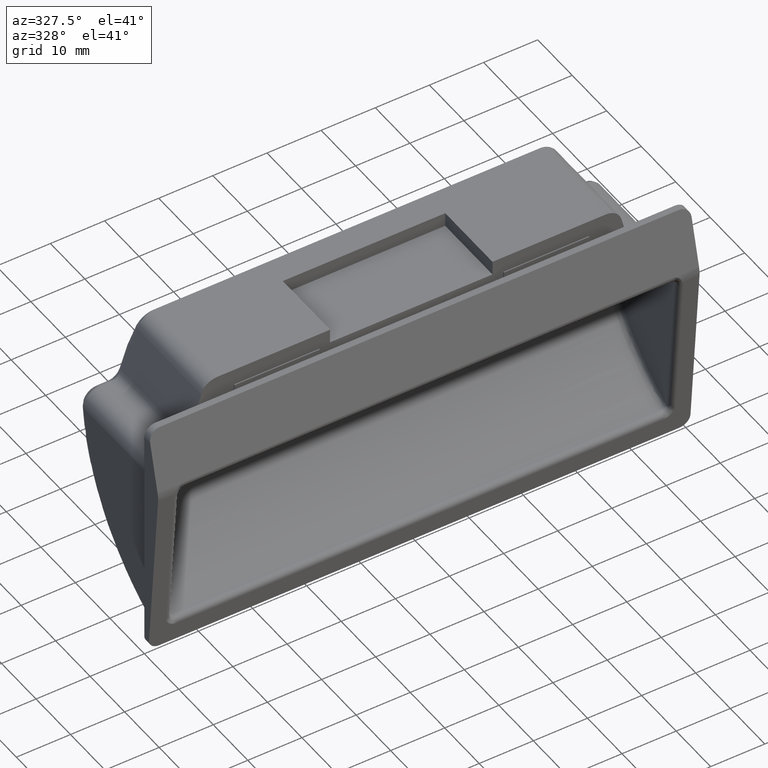
[diagram: clean part render]
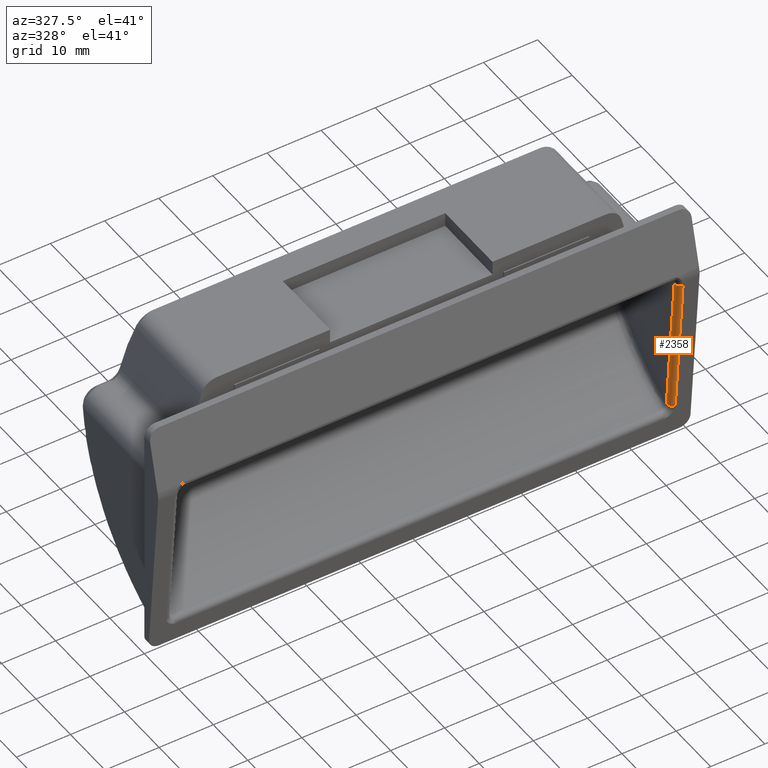
[diagram: same view with one face highlighted and labeled with its STEP entity id]
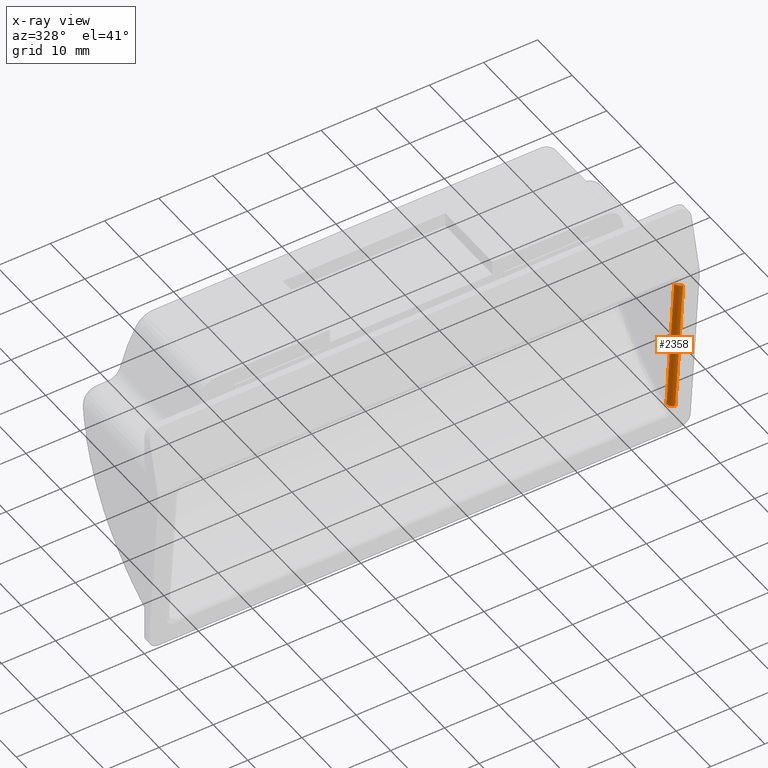
[diagram: x-ray of the same camera — body ghosted, the highlighted face saturated]
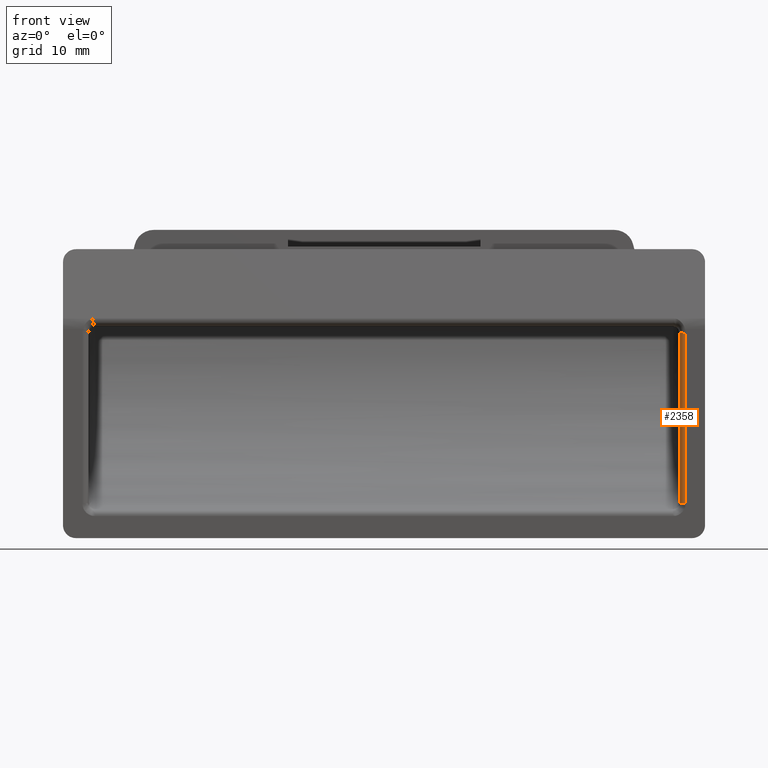
[diagram: same view with one face highlighted and labeled with its STEP entity id]
A machine part, auxiliary view. The second image highlights one B-rep face of the part: STEP entity #2358.
The next image is the same camera in x-ray: the body ghosted, the highlighted face saturated — about 0% of this face is hidden behind the body in this view.
A second angle (front view) of the same face is appended — the face is thin or edge-on in the first view.
In plain terms, the highlighted face is a freeform B-spline surface patch.
Its self-contained STEP definition (entity closure, byte-faithful):
#2120=CARTESIAN_POINT('',(47.0,-1.662433225174075,-17.835090263074399));
#2121=VERTEX_POINT('',#2120);
#2122=CARTESIAN_POINT('',(46.0,-0.666059978278147,-17.750000000000000));
#2123=VERTEX_POINT('',#2122);
#2124=CARTESIAN_POINT('',(47.0,-1.662433225174074,-17.835090263074392));
#2125=CARTESIAN_POINT('',(46.000000000000007,-1.662433225174075,-17.835090263074378));
#2126=CARTESIAN_POINT('',(46.0,-0.666059978278147,-17.750000000000000));
#2134=(BOUNDED_CURVE()B_SPLINE_CURVE(2,(#2124,#2125,#2126),.UNSPECIFIED.,.F.,.U.)CURVE()GEOMETRIC_REPRESENTATION_ITEM()QUASI_UNIFORM_CURVE()RATIONAL_B_SPLINE_CURVE((1.0,0.707106781186548,1.0))REPRESENTATION_ITEM(''));
#2135=EDGE_CURVE('',#2121,#2123,#2134,.T.);
#2314=CARTESIAN_POINT('',(47.026176948307878,-1.605514301066256,-18.497561104766429));
#2315=CARTESIAN_POINT('',(47.026176948307878,-3.983183397368657,9.344001395233391));
#2316=CARTESIAN_POINT('',(45.935242411405888,-1.633977821372997,-18.499991889051820));
#2317=CARTESIAN_POINT('',(45.935242411405888,-4.011646917675402,9.341570610948015));
#2318=CARTESIAN_POINT('',(46.001865201578141,-0.548655354842467,-18.407305363710709));
#2319=CARTESIAN_POINT('',(46.001865201578141,-2.926324451144865,9.434257136289125));
#2327=(BOUNDED_SURFACE()B_SPLINE_SURFACE(1,2,((#2314,#2316,#2318),(#2315,#2317,#2319)),.UNSPECIFIED.,.F.,.F.,.U.)B_SPLINE_SURFACE_WITH_KNOTS((2,2),(3,3),(0.0,27.942904515688920),(0.0,1.0),.UNSPECIFIED.)GEOMETRIC_REPRESENTATION_ITEM()RATIONAL_B_SPLINE_SURFACE(((1.0,0.675590207615660,1.0),(1.0,0.675590207615660,1.0)))REPRESENTATION_ITEM('')SURFACE());
#2328=CARTESIAN_POINT('',(47.0,-3.925532900417285,8.664909736925420));
#2329=VERTEX_POINT('',#2328);
#2330=CARTESIAN_POINT('',(46.0,-2.929159653521355,8.749999999999799));
#2331=VERTEX_POINT('',#2330);
#2332=CARTESIAN_POINT('',(47.0,-3.925532900417282,8.664909736925415));
#2333=CARTESIAN_POINT('',(46.000000000000007,-3.925532900417283,8.664909736925415));
#2334=CARTESIAN_POINT('',(46.0,-2.929159653521355,8.749999999999799));
#2342=(BOUNDED_CURVE()B_SPLINE_CURVE(2,(#2332,#2333,#2334),.UNSPECIFIED.,.F.,.U.)CURVE()GEOMETRIC_REPRESENTATION_ITEM()QUASI_UNIFORM_CURVE()RATIONAL_B_SPLINE_CURVE((1.0,0.707106781186548,1.0))REPRESENTATION_ITEM(''));
#2343=EDGE_CURVE('',#2329,#2331,#2342,.T.);
#2344=ORIENTED_EDGE('',*,*,#2343,.T.);
#2345=CARTESIAN_POINT('',(46.0,-0.666059978278147,-17.750000000000000));
#2346=CARTESIAN_POINT('',(46.0,-2.929159653521355,8.749999999999799));
#2347=QUASI_UNIFORM_CURVE('',1,(#2345,#2346),.UNSPECIFIED.,.F.,.U.);
#2348=EDGE_CURVE('',#2123,#2331,#2347,.T.);
#2349=ORIENTED_EDGE('',*,*,#2348,.F.);
#2350=ORIENTED_EDGE('',*,*,#2135,.F.);
#2351=CARTESIAN_POINT('',(47.0,-3.925532900417285,8.664909736925420));
#2352=CARTESIAN_POINT('',(47.0,-1.662433225174075,-17.835090263074399));
#2353=QUASI_UNIFORM_CURVE('',1,(#2351,#2352),.UNSPECIFIED.,.F.,.U.);
#2354=EDGE_CURVE('',#2329,#2121,#2353,.T.);
#2355=ORIENTED_EDGE('',*,*,#2354,.F.);
#2356=EDGE_LOOP('',(#2344,#2349,#2350,#2355));
#2357=FACE_OUTER_BOUND('',#2356,.T.);
#2358=ADVANCED_FACE('',(#2357),#2327,.T.);